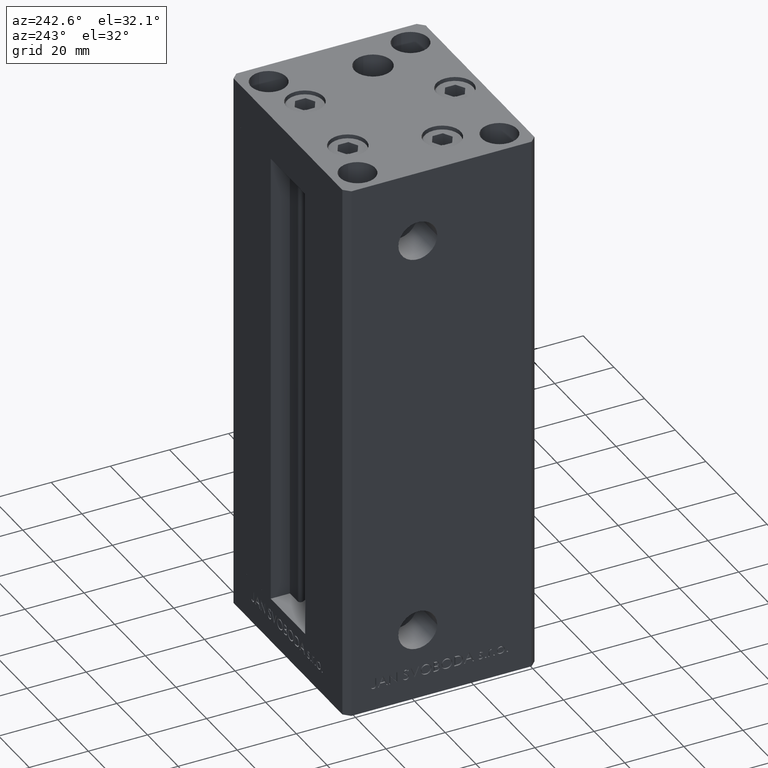
[diagram: clean part render]
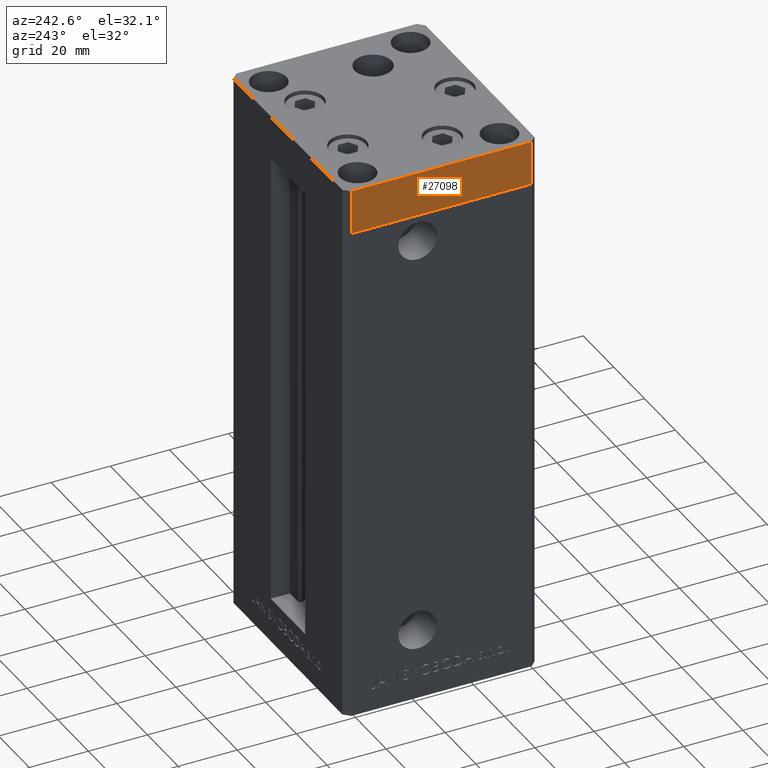
[diagram: same view with one face highlighted and labeled with its STEP entity id]
A machine part, auxiliary view. The second image highlights one B-rep face of the part: STEP entity #27098.
In plain terms, the highlighted planar face has unit normal (-1, -0, 0).
Its self-contained STEP definition (entity closure, byte-faithful):
#2277 = LINE ( 'NONE', #48512, #7723 ) ;
#2441 = EDGE_CURVE ( 'NONE', #27623, #6299, #7023, .T. ) ;
#2753 = CARTESIAN_POINT ( 'NONE',  ( -37.49999999999998579, -30.50000000000001421, 0.000000000000000000 ) ) ;
#6269 = CARTESIAN_POINT ( 'NONE',  ( -37.50000000000001421, 30.49999999999998579, -15.00000000000000000 ) ) ;
#6299 = VERTEX_POINT ( 'NONE', #12312 ) ;
#6565 = CARTESIAN_POINT ( 'NONE',  ( -37.50000000000001421, 30.49999999999998579, -15.00000000000000000 ) ) ;
#6730 = VERTEX_POINT ( 'NONE', #2753 ) ;
#7023 = LINE ( 'NONE', #6269, #39721 ) ;
#7723 = VECTOR ( 'NONE', #21612, 1000.000000000000000 ) ;
#8114 = ORIENTED_EDGE ( 'NONE', *, *, #36994, .T. ) ;
#8825 = VECTOR ( 'NONE', #10282, 1000.000000000000000 ) ;
#10077 = EDGE_CURVE ( 'NONE', #32547, #6730, #2277, .T. ) ;
#10282 = DIRECTION ( 'NONE',  ( 0.000000000000000000, 0.000000000000000000, 1.000000000000000000 ) ) ;
#12312 = CARTESIAN_POINT ( 'NONE',  ( -37.49999999999998579, -30.50000000000001421, -15.00000000000000000 ) ) ;
#15515 = PLANE ( 'NONE',  #23376 ) ;
#19523 = FACE_OUTER_BOUND ( 'NONE', #41823, .T. ) ;
#20336 = EDGE_CURVE ( 'NONE', #27623, #32547, #37923, .T. ) ;
#21612 = DIRECTION ( 'NONE',  ( 4.550094363217855288E-16, -1.000000000000000000, 0.000000000000000000 ) ) ;
#23376 = AXIS2_PLACEMENT_3D ( 'NONE', #46176, #26571, #38636 ) ;
#24119 = LINE ( 'NONE', #28150, #46289 ) ;
#26571 = DIRECTION ( 'NONE',  ( -1.000000000000000000, -4.550094363217855288E-16, 0.000000000000000000 ) ) ;
#27098 = ADVANCED_FACE ( 'NONE', ( #19523 ), #15515, .T. ) ;
#27623 = VERTEX_POINT ( 'NONE', #6565 ) ;
#28150 = CARTESIAN_POINT ( 'NONE',  ( -37.49999999999998579, -30.50000000000001421, -15.00000000000000000 ) ) ;
#30210 = ORIENTED_EDGE ( 'NONE', *, *, #10077, .F. ) ;
#32547 = VERTEX_POINT ( 'NONE', #36306 ) ;
#33404 = CARTESIAN_POINT ( 'NONE',  ( -37.50000000000001421, 30.49999999999998579, -15.00000000000000000 ) ) ;
#36306 = CARTESIAN_POINT ( 'NONE',  ( -37.50000000000001421, 30.49999999999998579, 0.000000000000000000 ) ) ;
#36994 = EDGE_CURVE ( 'NONE', #6299, #6730, #24119, .T. ) ;
#37923 = LINE ( 'NONE', #33404, #8825 ) ;
#38636 = DIRECTION ( 'NONE',  ( 4.550094363217855288E-16, -1.000000000000000000, 0.000000000000000000 ) ) ;
#39721 = VECTOR ( 'NONE', #40453, 1000.000000000000000 ) ;
#40453 = DIRECTION ( 'NONE',  ( 4.550094363217855288E-16, -1.000000000000000000, 0.000000000000000000 ) ) ;
#41823 = EDGE_LOOP ( 'NONE', ( #30210, #49718, #43304, #8114 ) ) ;
#43304 = ORIENTED_EDGE ( 'NONE', *, *, #2441, .T. ) ;
#46176 = CARTESIAN_POINT ( 'NONE',  ( -37.50000000000001421, 30.49999999999998579, -15.00000000000000000 ) ) ;
#46289 = VECTOR ( 'NONE', #46523, 1000.000000000000000 ) ;
#46523 = DIRECTION ( 'NONE',  ( 0.000000000000000000, 0.000000000000000000, 1.000000000000000000 ) ) ;
#48512 = CARTESIAN_POINT ( 'NONE',  ( -37.50000000000001421, 30.49999999999998579, 0.000000000000000000 ) ) ;
#49718 = ORIENTED_EDGE ( 'NONE', *, *, #20336, .F. ) ;